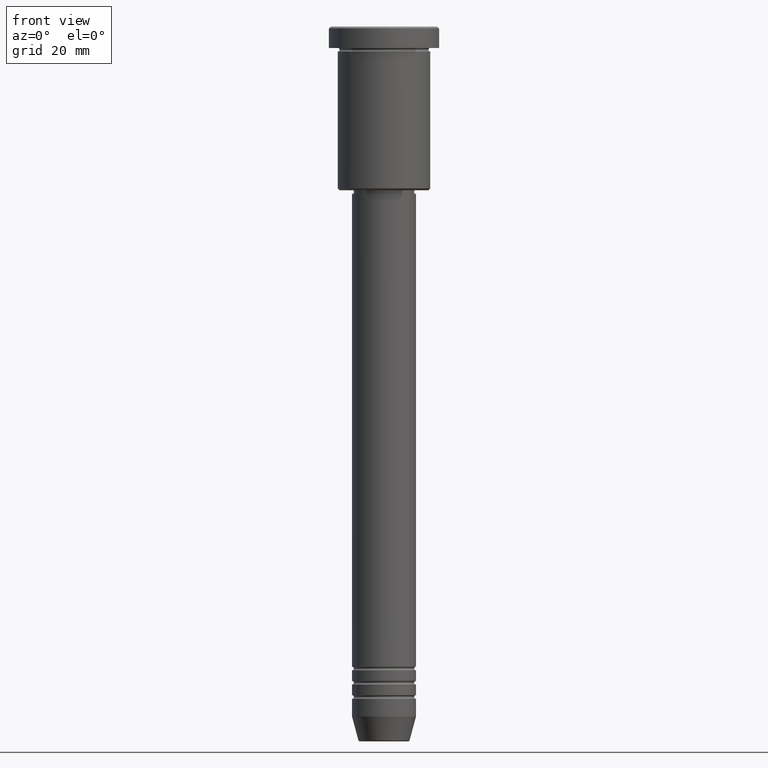
[diagram: clean part render]
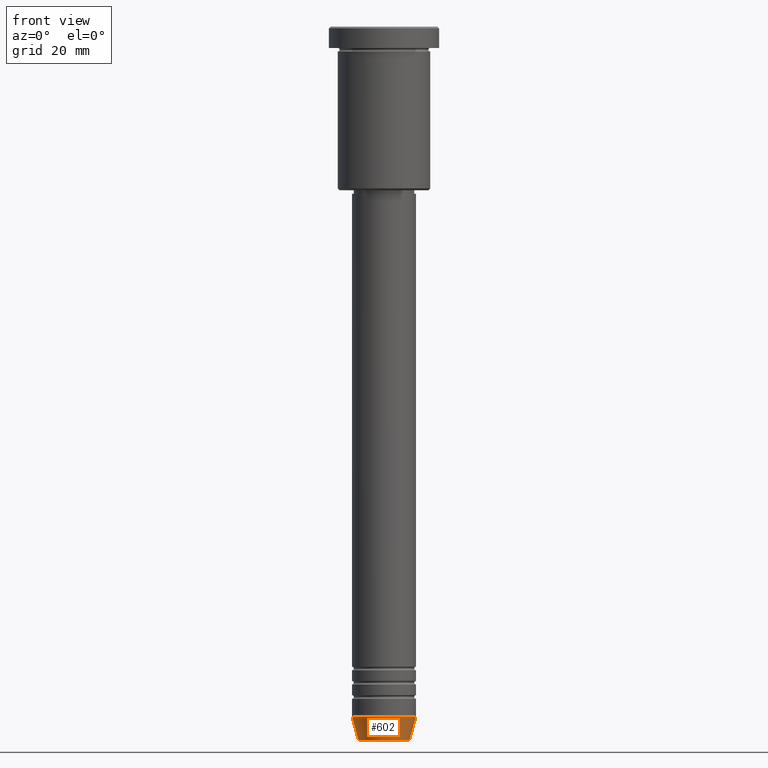
[diagram: same view with one face highlighted and labeled with its STEP entity id]
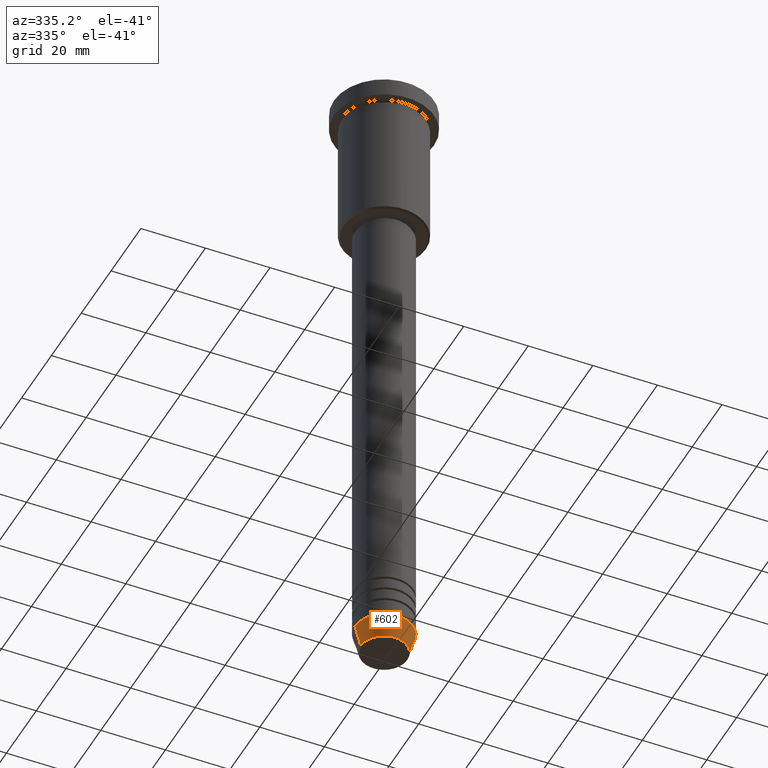
[diagram: same view with one face highlighted and labeled with its STEP entity id]
A machine part, front view. The second image highlights one B-rep face of the part: STEP entity #602.
A second angle (auxiliary view) of the same face is appended — the face is thin or edge-on in the first view.
In plain terms, the highlighted conical surface has half-angle 15 deg.
Its self-contained STEP definition (entity closure, byte-faithful):
#6 = AXIS2_PLACEMENT_3D ( 'NONE', #796, #1174, #1078 ) ;
#40 = CARTESIAN_POINT ( 'NONE',  ( 9.000000000000000000, 0.000000000000000000, -194.0000000000000000 ) ) ;
#53 = DIRECTION ( 'NONE',  ( 1.000000000000000000, 0.000000000000000000, 0.000000000000000000 ) ) ;
#83 = AXIS2_PLACEMENT_3D ( 'NONE', #318, #1139, #53 ) ;
#90 = EDGE_CURVE ( 'NONE', #896, #1140, #856, .T. ) ;
#98 = EDGE_CURVE ( 'NONE', #1020, #820, #680, .T. ) ;
#113 = EDGE_CURVE ( 'NONE', #820, #1140, #1114, .T. ) ;
#120 = CONICAL_SURFACE ( 'NONE', #725, 9.000000000000000000, 0.2617993877991500740 ) ;
#123 = VECTOR ( 'NONE', #307, 1000.000000000000000 ) ;
#181 = CARTESIAN_POINT ( 'NONE',  ( 0.000000000000000000, 0.000000000000000000, -194.0000000000000000 ) ) ;
#307 = DIRECTION ( 'NONE',  ( 0.2588190451025213501, 0.000000000000000000, 0.9659258262890680902 ) ) ;
#318 = CARTESIAN_POINT ( 'NONE',  ( 0.000000000000000000, 0.000000000000000000, -194.0000000000000000 ) ) ;
#378 = EDGE_LOOP ( 'NONE', ( #616, #899, #570, #752 ) ) ;
#421 = DIRECTION ( 'NONE',  ( 1.000000000000000000, 0.000000000000000000, 0.000000000000000000 ) ) ;
#439 = VECTOR ( 'NONE', #583, 1000.000000000000000 ) ;
#570 = ORIENTED_EDGE ( 'NONE', *, *, #90, .T. ) ;
#583 = DIRECTION ( 'NONE',  ( -0.2588190451025213501, 3.169619151431772337E-17, 0.9659258262890680902 ) ) ;
#602 = ADVANCED_FACE ( 'NONE', ( #1152 ), #120, .T. ) ;
#616 = ORIENTED_EDGE ( 'NONE', *, *, #98, .F. ) ;
#680 = LINE ( 'NONE', #1036, #439 ) ;
#701 = DIRECTION ( 'NONE',  ( -0.000000000000000000, -0.000000000000000000, 1.000000000000000000 ) ) ;
#719 = EDGE_CURVE ( 'NONE', #1020, #896, #1087, .T. ) ;
#725 = AXIS2_PLACEMENT_3D ( 'NONE', #181, #701, #421 ) ;
#752 = ORIENTED_EDGE ( 'NONE', *, *, #113, .F. ) ;
#796 = CARTESIAN_POINT ( 'NONE',  ( 0.000000000000000000, 0.000000000000000000, -200.6294095225512990 ) ) ;
#820 = VERTEX_POINT ( 'NONE', #1111 ) ;
#823 = CARTESIAN_POINT ( 'NONE',  ( 7.223655072137188604, 0.000000000000000000, -200.6294095225512990 ) ) ;
#856 = LINE ( 'NONE', #40, #123 ) ;
#896 = VERTEX_POINT ( 'NONE', #823 ) ;
#899 = ORIENTED_EDGE ( 'NONE', *, *, #719, .T. ) ;
#1020 = VERTEX_POINT ( 'NONE', #1144 ) ;
#1036 = CARTESIAN_POINT ( 'NONE',  ( -9.000000000000000000, 1.102182119232617714E-15, -194.0000000000000000 ) ) ;
#1078 = DIRECTION ( 'NONE',  ( 1.000000000000000000, 0.000000000000000000, 0.000000000000000000 ) ) ;
#1087 = CIRCLE ( 'NONE', #6, 7.223655072137188604 ) ;
#1111 = CARTESIAN_POINT ( 'NONE',  ( -9.000000000000000000, 1.102182119232617714E-15, -194.0000000000000000 ) ) ;
#1114 = CIRCLE ( 'NONE', #83, 9.000000000000000000 ) ;
#1139 = DIRECTION ( 'NONE',  ( -0.000000000000000000, -0.000000000000000000, 1.000000000000000000 ) ) ;
#1140 = VERTEX_POINT ( 'NONE', #1155 ) ;
#1144 = CARTESIAN_POINT ( 'NONE',  ( -7.223655072137189492, 9.934123627281765110E-16, -200.6294095225512990 ) ) ;
#1152 = FACE_OUTER_BOUND ( 'NONE', #378, .T. ) ;
#1155 = CARTESIAN_POINT ( 'NONE',  ( 9.000000000000000000, 0.000000000000000000, -194.0000000000000000 ) ) ;
#1174 = DIRECTION ( 'NONE',  ( -0.000000000000000000, -0.000000000000000000, 1.000000000000000000 ) ) ;